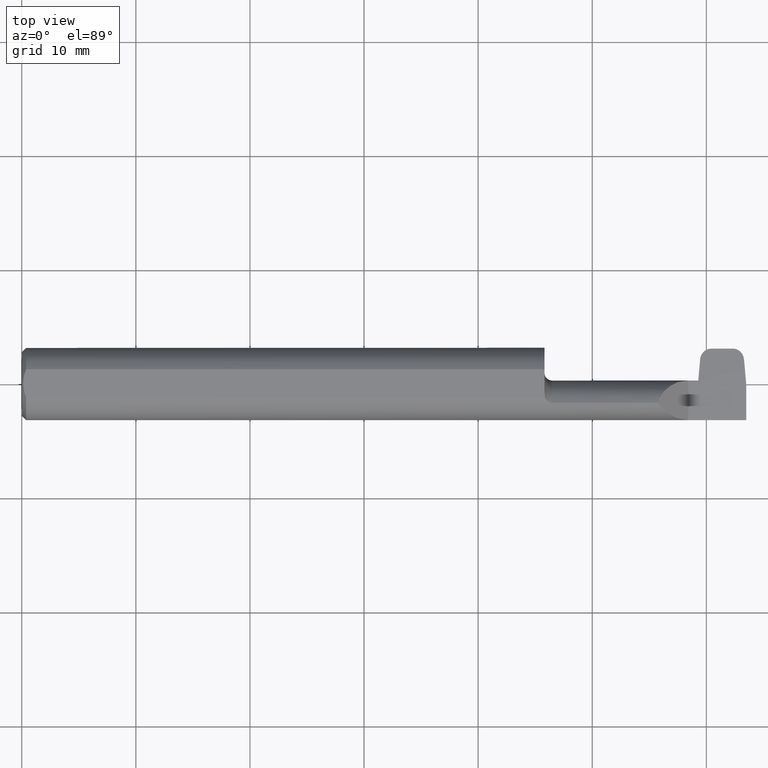
[diagram: clean part render]
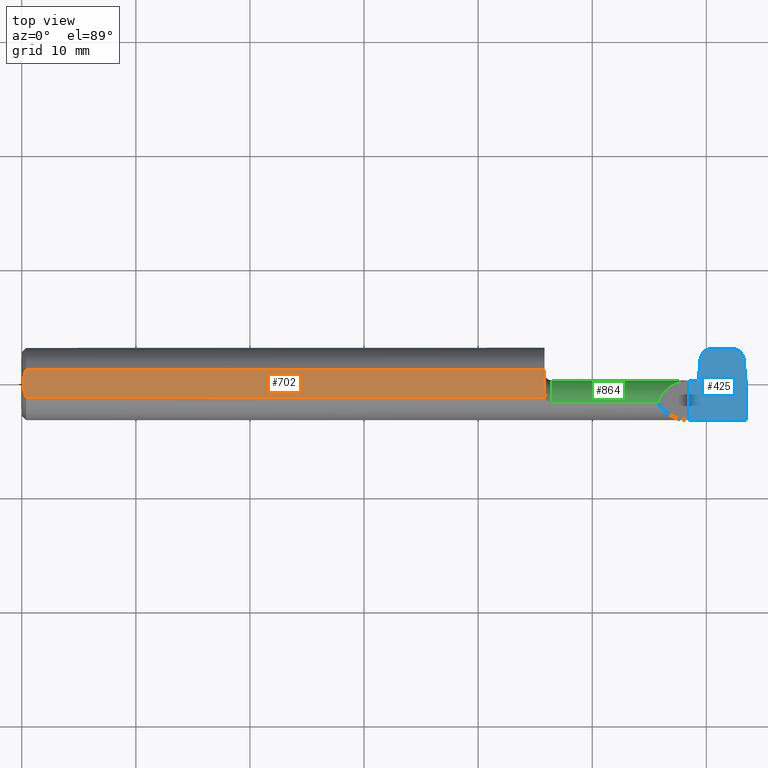
[diagram: same view with three faces highlighted in distinct colors, each labeled with its STEP entity id]
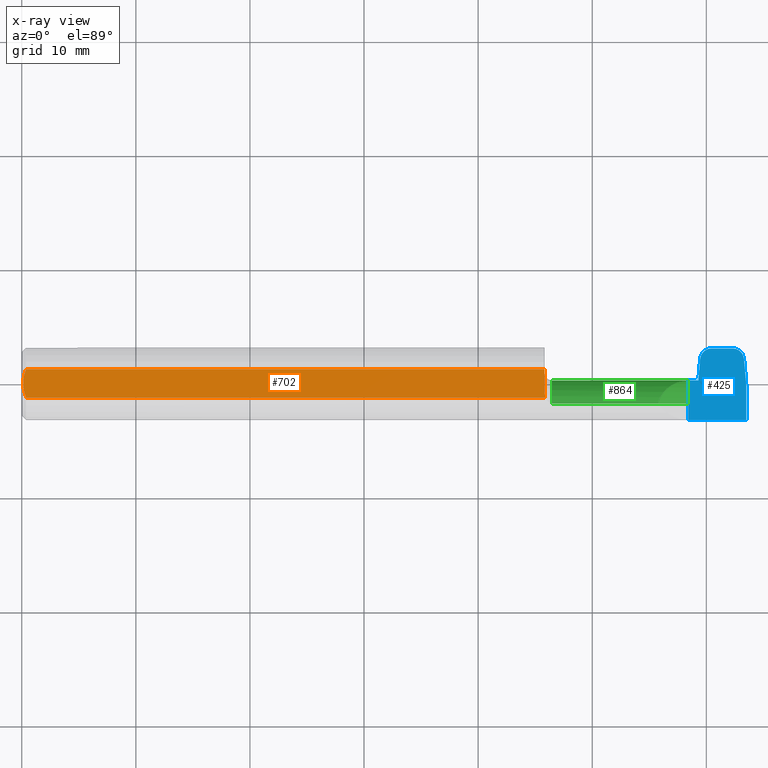
[diagram: x-ray of the same camera — body ghosted, the three highlighted faces saturated]
A machine part, top view with three faces highlighted in distinct colors.
The next image is the same camera in x-ray (body ghosted, the three faces saturated) — at least one of them is partly hidden behind the body in this view.
Their STEP definitions:

[orange] entity #702 — the highlighted planar face has unit normal (-0, 0, -1).
#12 = B_SPLINE_CURVE_WITH_KNOTS ( 'NONE', 3,
 ( #697, #567, #91, #836 ),
 .UNSPECIFIED., .F., .F.,
 ( 4, 4 ),
 ( 2.168404344971008868E-19, 0.0005630975672748592814 ),
 .UNSPECIFIED. ) ;
#46 = ORIENTED_EDGE ( 'NONE', *, *, #487, .T. ) ;
#47 = VERTEX_POINT ( 'NONE', #351 ) ;
#67 = CARTESIAN_POINT ( 'NONE',  ( 0.005949639560152591468, 0.01681318950603462661, 0.1148500000000000076 ) ) ;
#73 = EDGE_CURVE ( 'NONE', #443, #254, #192, .T. ) ;
#91 = CARTESIAN_POINT ( 'NONE',  ( 1.804000000000000270, -0.03432117512376132301, 0.1148500000000000076 ) ) ;
#108 = CARTESIAN_POINT ( 'NONE',  ( 1.804000000000000270, -0.02689594796630704471, 0.1148500000000000076 ) ) ;
#124 = CARTESIAN_POINT ( 'NONE',  ( 0.004999999999933147331, 5.639788019834102201E-15, 0.1148500000000000076 ) ) ;
#134 = FACE_OUTER_BOUND ( 'NONE', #580, .T. ) ;
#148 = CARTESIAN_POINT ( 'NONE',  ( 1.806165089549962355, -0.04895916665957456698, 0.1148500000000000076 ) ) ;
#158 = CARTESIAN_POINT ( 'NONE',  ( 0.01499999999999915637, 0.04895916665957456698, 0.1148500000000000076 ) ) ;
#167 = EDGE_CURVE ( 'NONE', #443, #47, #428, .T. ) ;
#192 = B_SPLINE_CURVE_WITH_KNOTS ( 'NONE', 3,
 ( #196, #733, #617, #67, #483, #124 ),
 .UNSPECIFIED., .F., .F.,
 ( 4, 2, 4 ),
 ( 0.002811086258179029771, 0.003441534532783594585, 0.004071982807388159833 ),
 .UNSPECIFIED. ) ;
#196 = CARTESIAN_POINT ( 'NONE',  ( 0.01499999999999915637, 0.04895916665957456698, 0.1148500000000000076 ) ) ;
#218 = CARTESIAN_POINT ( 'NONE',  ( 0.01499999999999914770, -0.04895916665957456698, 0.1148500000000000076 ) ) ;
#220 = CARTESIAN_POINT ( 'NONE',  ( 0.004999999999998236758, -0.008410179126392275384, 0.1148500000000000215 ) ) ;
#227 = CARTESIAN_POINT ( 'NONE',  ( 0.004999999999933147331, 5.639788019834102201E-15, 0.1148500000000000076 ) ) ;
#228 = DIRECTION ( 'NONE',  ( 1.000000000000000000, 0.000000000000000000, 0.000000000000000000 ) ) ;
#248 = DIRECTION ( 'NONE',  ( -1.000000000000000000, -0.000000000000000000, -0.000000000000000000 ) ) ;
#254 = VERTEX_POINT ( 'NONE', #700 ) ;
#286 = B_SPLINE_CURVE_WITH_KNOTS ( 'NONE', 3,
 ( #227, #220, #362, #772, #439, #498 ),
 .UNSPECIFIED., .F., .F.,
 ( 4, 2, 4 ),
 ( 0.004071982807388159833, 0.004705731387952724089, 0.005339479968517289211 ),
 .UNSPECIFIED. ) ;
#320 = VERTEX_POINT ( 'NONE', #218 ) ;
#325 = VERTEX_POINT ( 'NONE', #148 ) ;
#328 = EDGE_CURVE ( 'NONE', #47, #563, #342, .T. ) ;
#329 = DIRECTION ( 'NONE',  ( -0.000000000000000000, 0.000000000000000000, -1.000000000000000000 ) ) ;
#330 = ORIENTED_EDGE ( 'NONE', *, *, #167, .F. ) ;
#337 = ORIENTED_EDGE ( 'NONE', *, *, #773, .T. ) ;
#342 = LINE ( 'NONE', #426, #421 ) ;
#351 = CARTESIAN_POINT ( 'NONE',  ( 1.804000000000000270, 0.04895916665957456698, 0.1148500000000000076 ) ) ;
#362 = CARTESIAN_POINT ( 'NONE',  ( 0.005933586687556474670, -0.01676171734555376158, 0.1148500000000000215 ) ) ;
#412 = ORIENTED_EDGE ( 'NONE', *, *, #328, .F. ) ;
#413 = DIRECTION ( 'NONE',  ( -1.000000000000000000, 0.000000000000000000, 0.000000000000000000 ) ) ;
#421 = VECTOR ( 'NONE', #603, 39.37007874015748143 ) ;
#426 = CARTESIAN_POINT ( 'NONE',  ( 1.804000000000000270, 0.1000000000000000056, 0.1148500000000000076 ) ) ;
#428 = LINE ( 'NONE', #432, #851 ) ;
#432 = CARTESIAN_POINT ( 'NONE',  ( 2.500000000000000000, 0.04895916665957456698, 0.1148500000000000076 ) ) ;
#439 = CARTESIAN_POINT ( 'NONE',  ( 0.01198609678885614524, -0.04127345953699167180, 0.1148499999999999938 ) ) ;
#443 = VERTEX_POINT ( 'NONE', #158 ) ;
#480 = CARTESIAN_POINT ( 'NONE',  ( 0.000000000000000000, 0.1000000000000000056, 0.1148500000000000076 ) ) ;
#483 = CARTESIAN_POINT ( 'NONE',  ( 0.004999999999999684384, 0.008366382319371040363, 0.1148500000000000076 ) ) ;
#487 = EDGE_CURVE ( 'NONE', #325, #563, #12, .T. ) ;
#496 = VECTOR ( 'NONE', #248, 39.37007874015748143 ) ;
#498 = CARTESIAN_POINT ( 'NONE',  ( 0.01499999999999914770, -0.04895916665957456698, 0.1148500000000000076 ) ) ;
#563 = VERTEX_POINT ( 'NONE', #108 ) ;
#567 = CARTESIAN_POINT ( 'NONE',  ( 1.804890775228045641, -0.04165898946242331535, 0.1148500000000000076 ) ) ;
#580 = EDGE_LOOP ( 'NONE', ( #412, #330, #717, #337, #846, #46 ) ) ;
#596 = PLANE ( 'NONE',  #852 ) ;
#603 = DIRECTION ( 'NONE',  ( 0.000000000000000000, -1.000000000000000000, 0.000000000000000000 ) ) ;
#617 = CARTESIAN_POINT ( 'NONE',  ( 0.009419795109434097105, 0.03314228182474765472, 0.1148499999999999938 ) ) ;
#637 = EDGE_CURVE ( 'NONE', #325, #320, #644, .T. ) ;
#644 = LINE ( 'NONE', #850, #496 ) ;
#697 = CARTESIAN_POINT ( 'NONE',  ( 1.806165089549962355, -0.04895916665957456698, 0.1148500000000000076 ) ) ;
#700 = CARTESIAN_POINT ( 'NONE',  ( 0.004999999999933147331, 5.639788019834102201E-15, 0.1148500000000000076 ) ) ;
#702 = ADVANCED_FACE ( 'NONE', ( #134 ), #596, .F. ) ;
#717 = ORIENTED_EDGE ( 'NONE', *, *, #73, .T. ) ;
#733 = CARTESIAN_POINT ( 'NONE',  ( 0.01192863036854219932, 0.04112691532340072287, 0.1148500000000000215 ) ) ;
#772 = CARTESIAN_POINT ( 'NONE',  ( 0.009468318732755824640, -0.03334632524505316137, 0.1148499999999999660 ) ) ;
#773 = EDGE_CURVE ( 'NONE', #254, #320, #286, .T. ) ;
#836 = CARTESIAN_POINT ( 'NONE',  ( 1.804000000000000270, -0.02689594796630704471, 0.1148500000000000076 ) ) ;
#846 = ORIENTED_EDGE ( 'NONE', *, *, #637, .F. ) ;
#850 = CARTESIAN_POINT ( 'NONE',  ( 2.500000000000000000, -0.04895916665957456698, 0.1148500000000000076 ) ) ;
#851 = VECTOR ( 'NONE', #228, 39.37007874015748143 ) ;
#852 = AXIS2_PLACEMENT_3D ( 'NONE', #480, #329, #413 ) ;

[blue] entity #425 — the highlighted planar face has unit normal (-0, 0, -1).
#8 = CARTESIAN_POINT ( 'NONE',  ( 2.489063917059260334, 0.1221499999999998004, 0.000000000000000000 ) ) ;
#15 = VECTOR ( 'NONE', #569, 39.37007874015748143 ) ;
#17 = DIRECTION ( 'NONE',  ( -0.000000000000000000, 1.000000000000000000, -0.000000000000000000 ) ) ;
#18 = CARTESIAN_POINT ( 'NONE',  ( 2.474803594749801938, 0.1221499999999997171, -1.707404996040164203E-17 ) ) ;
#31 = EDGE_CURVE ( 'NONE', #115, #249, #411, .T. ) ;
#40 = VECTOR ( 'NONE', #347, 39.37007874015748143 ) ;
#75 = VECTOR ( 'NONE', #490, 39.37007874015748143 ) ;
#82 = CARTESIAN_POINT ( 'NONE',  ( 2.333440164071409750, 0.01215000000000003577, 0.000000000000000000 ) ) ;
#95 = CARTESIAN_POINT ( 'NONE',  ( 2.340825582351316214, 0.08513566491434625128, 0.000000000000000000 ) ) ;
#99 = VERTEX_POINT ( 'NONE', #754 ) ;
#103 = ORIENTED_EDGE ( 'NONE', *, *, #574, .F. ) ;
#113 = ORIENTED_EDGE ( 'NONE', *, *, #31, .T. ) ;
#115 = VERTEX_POINT ( 'NONE', #554 ) ;
#118 = VERTEX_POINT ( 'NONE', #678 ) ;
#132 = VECTOR ( 'NONE', #17, 39.37007874015748143 ) ;
#136 = LINE ( 'NONE', #350, #40 ) ;
#140 = DIRECTION ( 'NONE',  ( -1.000000000000000000, 9.237377621997176378E-16, 0.000000000000000000 ) ) ;
#143 = EDGE_CURVE ( 'NONE', #674, #115, #311, .T. ) ;
#154 =( BOUNDED_CURVE ( )  B_SPLINE_CURVE ( 3, ( #737, #878, #817, #481 ),
 .UNSPECIFIED., .F., .F. ) 
 B_SPLINE_CURVE_WITH_KNOTS ( ( 4, 4 ),
 ( 6.013479987146138406, 7.464055041535656798 ),
 .UNSPECIFIED. ) 
 CURVE ( )  GEOMETRIC_REPRESENTATION_ITEM ( )  RATIONAL_B_SPLINE_CURVE ( ( 1.000000000000000000, 0.8322058143701920319, 0.8322058143701920319, 1.000000000000000000 ) ) 
 REPRESENTATION_ITEM ( '' )  );
#169 = VERTEX_POINT ( 'NONE', #292 ) ;
#178 = VERTEX_POINT ( 'NONE', #503 ) ;
#181 = LINE ( 'NONE', #778, #757 ) ;
#190 = VERTEX_POINT ( 'NONE', #82 ) ;
#212 = EDGE_CURVE ( 'NONE', #190, #169, #289, .T. ) ;
#234 = CARTESIAN_POINT ( 'NONE',  ( 2.333440164071409750, 0.01215000000000003577, 0.000000000000000000 ) ) ;
#235 = VECTOR ( 'NONE', #631, 39.37007874015748854 ) ;
#249 = VERTEX_POINT ( 'NONE', #499 ) ;
#282 = EDGE_CURVE ( 'NONE', #118, #190, #420, .T. ) ;
#289 = LINE ( 'NONE', #234, #15 ) ;
#292 = CARTESIAN_POINT ( 'NONE',  ( 2.334440164071409640, 0.01215000000000003230, 0.000000000000000000 ) ) ;
#300 = CARTESIAN_POINT ( 'NONE',  ( 2.300000000000000266, 0.1250000000000000000, -2.465075339897404302E-17 ) ) ;
#301 = CARTESIAN_POINT ( 'NONE',  ( 2.492302251767204435, 0.08513566491434633454, 0.000000000000000000 ) ) ;
#302 = EDGE_CURVE ( 'NONE', #674, #591, #676, .T. ) ;
#311 =( BOUNDED_CURVE ( )  B_SPLINE_CURVE ( 3, ( #301, #828, #18, #633 ),
 .UNSPECIFIED., .F., .F. ) 
 B_SPLINE_CURVE_WITH_KNOTS ( ( 4, 4 ),
 ( 1.960722919233723216, 3.411297973623238722 ),
 .UNSPECIFIED. ) 
 CURVE ( )  GEOMETRIC_REPRESENTATION_ITEM ( )  RATIONAL_B_SPLINE_CURVE ( ( 1.000000000000000000, 0.8322058143701926980, 0.8322058143701926980, 1.000000000000000000 ) ) 
 REPRESENTATION_ITEM ( '' )  );
#347 = DIRECTION ( 'NONE',  ( -0.000000000000000000, 1.000000000000000000, -0.000000000000000000 ) ) ;
#350 = CARTESIAN_POINT ( 'NONE',  ( 2.500000000000000000, 0.1250000000000000000, -2.465075339897404302E-17 ) ) ;
#366 = CARTESIAN_POINT ( 'NONE',  ( 2.334440164071409640, 0.01215000000000003230, 0.000000000000000000 ) ) ;
#371 = PLANE ( 'NONE',  #613 ) ;
#373 = EDGE_CURVE ( 'NONE', #249, #784, #154, .T. ) ;
#384 = CARTESIAN_POINT ( 'NONE',  ( 2.500000000000000000, -0.002850000000000199596, 0.000000000000000000 ) ) ;
#386 = ORIENTED_EDGE ( 'NONE', *, *, #822, .F. ) ;
#405 = ORIENTED_EDGE ( 'NONE', *, *, #491, .F. ) ;
#411 = LINE ( 'NONE', #664, #640 ) ;
#420 = LINE ( 'NONE', #542, #75 ) ;
#425 = ADVANCED_FACE ( 'NONE', ( #564 ), #371, .F. ) ;
#434 = LINE ( 'NONE', #366, #235 ) ;
#445 = ORIENTED_EDGE ( 'NONE', *, *, #373, .T. ) ;
#475 = EDGE_LOOP ( 'NONE', ( #113, #445, #405, #795, #665, #386, #103, #736, #728, #601 ) ) ;
#481 = CARTESIAN_POINT ( 'NONE',  ( 2.340825582351316214, 0.08513566491434625128, 0.000000000000000000 ) ) ;
#490 = DIRECTION ( 'NONE',  ( 1.000000000000000000, 0.000000000000000000, 0.000000000000000000 ) ) ;
#491 = EDGE_CURVE ( 'NONE', #169, #784, #434, .T. ) ;
#497 = DIRECTION ( 'NONE',  ( -0.000000000000000000, 0.000000000000000000, -1.000000000000000000 ) ) ;
#499 = CARTESIAN_POINT ( 'NONE',  ( 2.379666486481432752, 0.1221499999999998143, -2.465075339897404302E-17 ) ) ;
#503 = CARTESIAN_POINT ( 'NONE',  ( 2.300000000000000266, -0.1248500000000000026, -2.465075339897404302E-17 ) ) ;
#509 = CARTESIAN_POINT ( 'NONE',  ( 2.300000000000000266, 0.1250000000000000000, -2.465075339897404302E-17 ) ) ;
#521 = DIRECTION ( 'NONE',  ( -1.000000000000000000, -0.000000000000000000, -0.000000000000000000 ) ) ;
#531 = VECTOR ( 'NONE', #559, 39.37007874015748143 ) ;
#542 = CARTESIAN_POINT ( 'NONE',  ( 1.804000000000000270, 0.01215000000000003230, -2.465075339897404302E-17 ) ) ;
#554 = CARTESIAN_POINT ( 'NONE',  ( 2.453461347637087897, 0.1221499999999997449, -2.465075339897404302E-17 ) ) ;
#559 = DIRECTION ( 'NONE',  ( 0.08715574274765255924, -0.9961946980917459893, 0.000000000000000000 ) ) ;
#564 = FACE_OUTER_BOUND ( 'NONE', #475, .T. ) ;
#569 = DIRECTION ( 'NONE',  ( 1.000000000000000000, -2.134256245050053599E-15, 0.000000000000000000 ) ) ;
#574 = EDGE_CURVE ( 'NONE', #99, #178, #181, .T. ) ;
#591 = VERTEX_POINT ( 'NONE', #384 ) ;
#601 = ORIENTED_EDGE ( 'NONE', *, *, #143, .T. ) ;
#613 = AXIS2_PLACEMENT_3D ( 'NONE', #509, #497, #705 ) ;
#631 = DIRECTION ( 'NONE',  ( 0.08715574274765007512, 0.9961946980917462113, 0.000000000000000000 ) ) ;
#633 = CARTESIAN_POINT ( 'NONE',  ( 2.453461347637087897, 0.1221499999999997449, -2.465075339897404302E-17 ) ) ;
#640 = VECTOR ( 'NONE', #140, 39.37007874015748143 ) ;
#664 = CARTESIAN_POINT ( 'NONE',  ( 2.300000000000000266, 0.1221499999999998837, -2.465075339897404302E-17 ) ) ;
#665 = ORIENTED_EDGE ( 'NONE', *, *, #282, .F. ) ;
#674 = VERTEX_POINT ( 'NONE', #871 ) ;
#676 = LINE ( 'NONE', #8, #531 ) ;
#678 = CARTESIAN_POINT ( 'NONE',  ( 2.300000000000000266, 0.01215000000000003230, -2.465075339897404302E-17 ) ) ;
#705 = DIRECTION ( 'NONE',  ( -1.000000000000000000, 0.000000000000000000, 0.000000000000000000 ) ) ;
#728 = ORIENTED_EDGE ( 'NONE', *, *, #302, .F. ) ;
#736 = ORIENTED_EDGE ( 'NONE', *, *, #865, .T. ) ;
#737 = CARTESIAN_POINT ( 'NONE',  ( 2.379666486481432752, 0.1221499999999998143, -2.465075339897404302E-17 ) ) ;
#754 = CARTESIAN_POINT ( 'NONE',  ( 2.500000000000000000, -0.1248500000000000026, -2.465075339897404302E-17 ) ) ;
#757 = VECTOR ( 'NONE', #521, 39.37007874015748143 ) ;
#778 = CARTESIAN_POINT ( 'NONE',  ( 2.500000000000000000, -0.1248500000000000026, -2.465075339897404302E-17 ) ) ;
#784 = VERTEX_POINT ( 'NONE', #95 ) ;
#795 = ORIENTED_EDGE ( 'NONE', *, *, #212, .F. ) ;
#817 = CARTESIAN_POINT ( 'NONE',  ( 2.342766828185319561, 0.1073242063295298809, -1.707404996040164512E-17 ) ) ;
#822 = EDGE_CURVE ( 'NONE', #178, #118, #827, .T. ) ;
#827 = LINE ( 'NONE', #300, #132 ) ;
#828 = CARTESIAN_POINT ( 'NONE',  ( 2.490361005933200200, 0.1073242063295298254, -1.707404996040164203E-17 ) ) ;
#865 = EDGE_CURVE ( 'NONE', #99, #591, #136, .T. ) ;
#871 = CARTESIAN_POINT ( 'NONE',  ( 2.492302251767204435, 0.08513566491434633454, 0.000000000000000000 ) ) ;
#878 = CARTESIAN_POINT ( 'NONE',  ( 2.358324239368719155, 0.1221499999999998004, -1.707404996040164512E-17 ) ) ;

[green] entity #864 — the highlighted cylindrical surface (edge-blend (fillet) strip) has radius 2.794 mm, axis along (-1, -0, -0).
#9 = CYLINDRICAL_SURFACE ( 'NONE', #478, 0.1100000000000000283 ) ;
#23 = EDGE_CURVE ( 'NONE', #456, #853, #58, .T. ) ;
#28 = VERTEX_POINT ( 'NONE', #206 ) ;
#33 = CARTESIAN_POINT ( 'NONE',  ( 2.300000000000000266, 0.01214944318040891459, 0.0003500000000001822508 ) ) ;
#35 = VERTEX_POINT ( 'NONE', #819 ) ;
#48 = CARTESIAN_POINT ( 'NONE',  ( 2.331242751836523741, 0.01105540399502986243, -0.01789648648597841687 ) ) ;
#54 = CARTESIAN_POINT ( 'NONE',  ( 2.330172693961769070, 0.008882529890359617750, -0.02661140851596355966 ) ) ;
#58 = LINE ( 'NONE', #808, #710 ) ;
#64 = EDGE_LOOP ( 'NONE', ( #809, #525, #321, #804, #713, #534, #119, #861, #257, #130 ) ) ;
#71 = DIRECTION ( 'NONE',  ( 1.000000000000000000, 0.000000000000000000, 0.000000000000000000 ) ) ;
#75 = VECTOR ( 'NONE', #490, 39.37007874015748143 ) ;
#82 = CARTESIAN_POINT ( 'NONE',  ( 2.333440164071409750, 0.01215000000000003577, 0.000000000000000000 ) ) ;
#86 = CARTESIAN_POINT ( 'NONE',  ( 2.337434248793043068, 0.008882529890359626423, -0.02661140851596348680 ) ) ;
#88 = DIRECTION ( 'NONE',  ( -1.000000000000000000, -0.000000000000000000, -0.000000000000000000 ) ) ;
#110 = AXIS2_PLACEMENT_3D ( 'NONE', #679, #71, #485 ) ;
#117 = CARTESIAN_POINT ( 'NONE',  ( 2.346311322083690420, -0.09784999999999999254, 0.000000000000000000 ) ) ;
#118 = VERTEX_POINT ( 'NONE', #678 ) ;
#119 = ORIENTED_EDGE ( 'NONE', *, *, #636, .F. ) ;
#130 = ORIENTED_EDGE ( 'NONE', *, *, #682, .F. ) ;
#166 = EDGE_CURVE ( 'NONE', #639, #456, #222, .T. ) ;
#172 = CARTESIAN_POINT ( 'NONE',  ( 1.829000000000000181, -0.06674575881451197401, -0.1055107870327721270 ) ) ;
#179 = CARTESIAN_POINT ( 'NONE',  ( 2.249507022518907995, 0.01198878289334361948, 0.05084297748109223303 ) ) ;
#185 = DIRECTION ( 'NONE',  ( 0.000000000000000000, 0.000000000000000000, 1.000000000000000000 ) ) ;
#190 = VERTEX_POINT ( 'NONE', #82 ) ;
#206 = CARTESIAN_POINT ( 'NONE',  ( 2.194839212967228281, -0.06674575881451201564, 0.1055107870327720992 ) ) ;
#222 = LINE ( 'NONE', #767, #770 ) ;
#230 = LINE ( 'NONE', #703, #744 ) ;
#243 = EDGE_CURVE ( 'NONE', #35, #118, #293, .T. ) ;
#257 = ORIENTED_EDGE ( 'NONE', *, *, #282, .T. ) ;
#267 = DIRECTION ( 'NONE',  ( -1.000000000000000000, -0.000000000000000000, -0.000000000000000000 ) ) ;
#268 = VERTEX_POINT ( 'NONE', #465 ) ;
#282 = EDGE_CURVE ( 'NONE', #118, #190, #420, .T. ) ;
#293 = CIRCLE ( 'NONE', #667, 0.1100000000000000283 ) ;
#298 = DIRECTION ( 'NONE',  ( 0.000000000000000000, 0.000000000000000000, 1.000000000000000000 ) ) ;
#305 =( BOUNDED_CURVE ( )  B_SPLINE_CURVE ( 3, ( #54, #48, #468, #606 ),
 .UNSPECIFIED., .F., .T. ) 
 B_SPLINE_CURVE_WITH_KNOTS ( ( 4, 4 ),
 ( 1.326450231515689859, 1.570796326794896780 ),
 .UNSPECIFIED. ) 
 CURVE ( )  GEOMETRIC_REPRESENTATION_ITEM ( )  RATIONAL_B_SPLINE_CURVE ( ( 1.000000000000000000, 0.9950307677608813961, 0.9950307677608813961, 1.000000000000000000 ) ) 
 REPRESENTATION_ITEM ( '' )  );
#321 = ORIENTED_EDGE ( 'NONE', *, *, #610, .F. ) ;
#324 = VERTEX_POINT ( 'NONE', #756 ) ;
#378 = DIRECTION ( 'NONE',  ( 1.000000000000000000, -0.000000000000000000, -0.000000000000000000 ) ) ;
#391 = EDGE_CURVE ( 'NONE', #520, #268, #507, .T. ) ;
#420 = LINE ( 'NONE', #542, #75 ) ;
#444 = CARTESIAN_POINT ( 'NONE',  ( 2.069000000000000394, -0.06674575881451197401, -0.1055107870327721270 ) ) ;
#450 = CARTESIAN_POINT ( 'NONE',  ( 2.346311322083690420, 0.008882529890359626423, -0.02661140851596348680 ) ) ;
#456 = VERTEX_POINT ( 'NONE', #86 ) ;
#465 = CARTESIAN_POINT ( 'NONE',  ( 1.829000000000000181, -0.06674575881451197401, 0.1055107870327721270 ) ) ;
#468 = CARTESIAN_POINT ( 'NONE',  ( 2.332337347841493713, 0.01215000000000003577, -0.008981717422824310459 ) ) ;
#478 = AXIS2_PLACEMENT_3D ( 'NONE', #680, #267, #806 ) ;
#485 = DIRECTION ( 'NONE',  ( 0.000000000000000000, 0.000000000000000000, -1.000000000000000000 ) ) ;
#488 = DIRECTION ( 'NONE',  ( -1.000000000000000000, -0.000000000000000000, -0.000000000000000000 ) ) ;
#490 = DIRECTION ( 'NONE',  ( 1.000000000000000000, 0.000000000000000000, 0.000000000000000000 ) ) ;
#502 = DIRECTION ( 'NONE',  ( 1.000000000000000000, 0.000000000000000000, 0.000000000000000000 ) ) ;
#507 = CIRCLE ( 'NONE', #110, 0.1100000000000000283 ) ;
#520 = VERTEX_POINT ( 'NONE', #172 ) ;
#525 = ORIENTED_EDGE ( 'NONE', *, *, #166, .F. ) ;
#527 = EDGE_CURVE ( 'NONE', #324, #520, #845, .T. ) ;
#534 = ORIENTED_EDGE ( 'NONE', *, *, #776, .T. ) ;
#542 = CARTESIAN_POINT ( 'NONE',  ( 1.804000000000000270, 0.01215000000000003230, -2.465075339897404302E-17 ) ) ;
#582 = CARTESIAN_POINT ( 'NONE',  ( 2.194839212967228281, -0.06674575881451201564, 0.1055107870327720992 ) ) ;
#585 = DIRECTION ( 'NONE',  ( -1.000000000000000000, -0.000000000000000000, -0.000000000000000000 ) ) ;
#606 = CARTESIAN_POINT ( 'NONE',  ( 2.333440164071409750, 0.01215000000000003577, 0.000000000000000000 ) ) ;
#610 = EDGE_CURVE ( 'NONE', #324, #639, #797, .T. ) ;
#620 = FACE_OUTER_BOUND ( 'NONE', #64, .T. ) ;
#630 = CARTESIAN_POINT ( 'NONE',  ( 2.300000000000000266, -0.09784999999999999254, 0.000000000000000000 ) ) ;
#636 = EDGE_CURVE ( 'NONE', #35, #28, #874, .T. ) ;
#639 = VERTEX_POINT ( 'NONE', #450 ) ;
#667 = AXIS2_PLACEMENT_3D ( 'NONE', #630, #774, #298 ) ;
#678 = CARTESIAN_POINT ( 'NONE',  ( 2.300000000000000266, 0.01215000000000003230, -2.465075339897404302E-17 ) ) ;
#679 = CARTESIAN_POINT ( 'NONE',  ( 1.829000000000000181, -0.09784999999999999254, 0.000000000000000000 ) ) ;
#680 = CARTESIAN_POINT ( 'NONE',  ( 1.804000000000000270, -0.09784999999999999254, 0.000000000000000000 ) ) ;
#682 = EDGE_CURVE ( 'NONE', #853, #190, #305, .T. ) ;
#698 = AXIS2_PLACEMENT_3D ( 'NONE', #117, #378, #185 ) ;
#703 = CARTESIAN_POINT ( 'NONE',  ( 2.069000000000000394, -0.06674575881451197401, 0.1055107870327721270 ) ) ;
#710 = VECTOR ( 'NONE', #488, 39.37007874015748143 ) ;
#713 = ORIENTED_EDGE ( 'NONE', *, *, #391, .T. ) ;
#744 = VECTOR ( 'NONE', #502, 39.37007874015748143 ) ;
#756 = CARTESIAN_POINT ( 'NONE',  ( 2.346311322083690420, -0.06674575881451198789, -0.1055107870327721270 ) ) ;
#766 = CARTESIAN_POINT ( 'NONE',  ( 2.330172693961769070, 0.008882529890359617750, -0.02661140851596355966 ) ) ;
#767 = CARTESIAN_POINT ( 'NONE',  ( 2.346311322083690420, 0.008882529890359626423, -0.02661140851596348680 ) ) ;
#770 = VECTOR ( 'NONE', #88, 39.37007874015748143 ) ;
#774 = DIRECTION ( 'NONE',  ( -1.000000000000000000, -0.000000000000000000, -0.000000000000000000 ) ) ;
#776 = EDGE_CURVE ( 'NONE', #268, #28, #230, .T. ) ;
#797 = CIRCLE ( 'NONE', #698, 0.1100000000000000283 ) ;
#804 = ORIENTED_EDGE ( 'NONE', *, *, #527, .T. ) ;
#806 = DIRECTION ( 'NONE',  ( 0.000000000000000000, 0.000000000000000000, 1.000000000000000000 ) ) ;
#808 = CARTESIAN_POINT ( 'NONE',  ( 1.804000000000000492, 0.008882529890361874625, -0.02661140851595448359 ) ) ;
#809 = ORIENTED_EDGE ( 'NONE', *, *, #23, .F. ) ;
#819 = CARTESIAN_POINT ( 'NONE',  ( 2.300000000000000266, 0.01214944318040891459, 0.0003500000000001822508 ) ) ;
#841 = VECTOR ( 'NONE', #585, 39.37007874015748143 ) ;
#845 = LINE ( 'NONE', #444, #841 ) ;
#853 = VERTEX_POINT ( 'NONE', #766 ) ;
#854 = CARTESIAN_POINT ( 'NONE',  ( 2.209116973875248302, -0.01831320643403844955, 0.09123302612475124584 ) ) ;
#861 = ORIENTED_EDGE ( 'NONE', *, *, #243, .T. ) ;
#864 = ADVANCED_FACE ( 'NONE', ( #620 ), #9, .T. ) ;
#874 =( BOUNDED_CURVE ( )  B_SPLINE_CURVE ( 3, ( #33, #179, #854, #582 ),
 .UNSPECIFIED., .F., .T. ) 
 B_SPLINE_CURVE_WITH_KNOTS ( ( 4, 4 ),
 ( 4.715570803935303701, 5.996508910626888067 ),
 .UNSPECIFIED. ) 
 CURVE ( )  GEOMETRIC_REPRESENTATION_ITEM ( )  RATIONAL_B_SPLINE_CURVE ( ( 1.000000000000000000, 0.8678770354264943032, 0.8678770354264943032, 1.000000000000000000 ) ) 
 REPRESENTATION_ITEM ( '' )  );